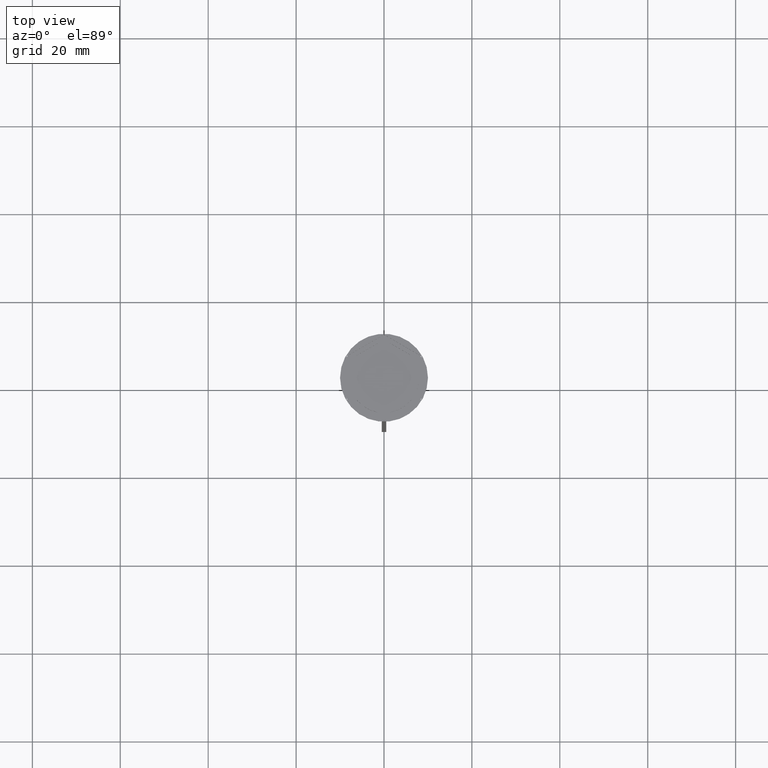
[diagram: clean part render]
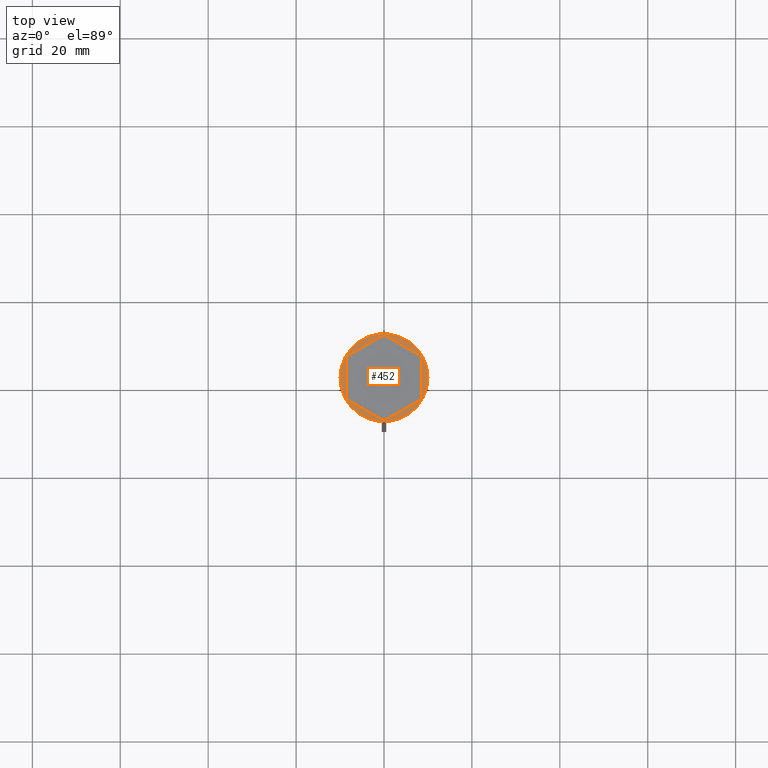
[diagram: same view with one face highlighted and labeled with its STEP entity id]
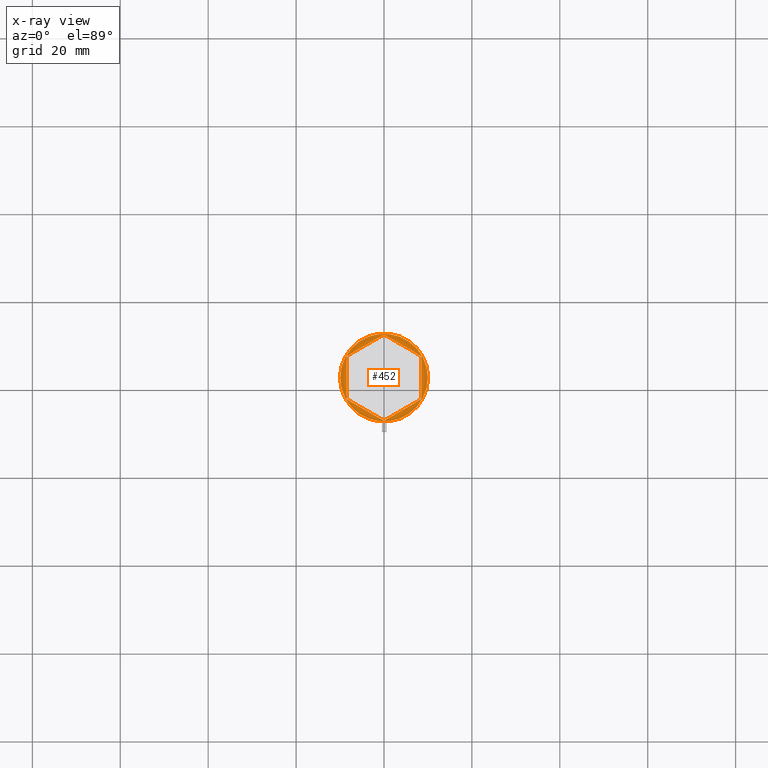
[diagram: x-ray of the same camera — body ghosted, the highlighted face saturated]
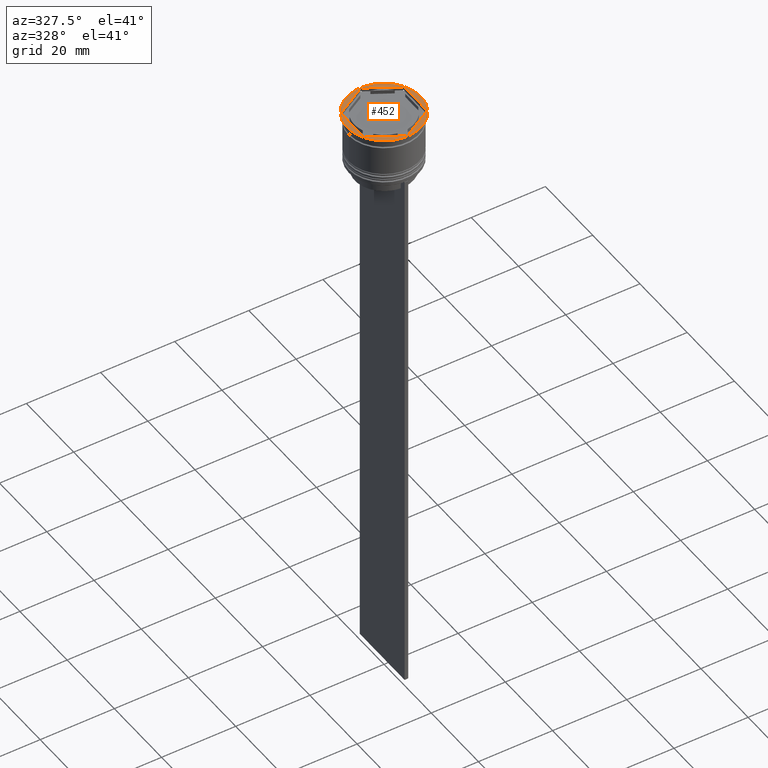
[diagram: same view with one face highlighted and labeled with its STEP entity id]
A machine part, top view. The second image highlights one B-rep face of the part: STEP entity #452.
The next image is the same camera in x-ray: the body ghosted, the highlighted face saturated — about 0% of this face is hidden behind the body in this view.
A second angle (auxiliary view) of the same face is appended — the face is thin or edge-on in the first view.
In plain terms, the highlighted planar face has unit normal (0, -0, 1).
Its self-contained STEP definition (entity closure, byte-faithful):
#31 = CARTESIAN_POINT ( 'NONE',  ( 0.000000000000000000, 0.000000000000000000, 0.000000000000000000 ) ) ;
#131 = DIRECTION ( 'NONE',  ( 1.000000000000000000, 0.000000000000000000, 0.000000000000000000 ) ) ;
#173 = VERTEX_POINT ( 'NONE', #1918 ) ;
#242 = EDGE_CURVE ( 'NONE', #744, #2194, #259, .T. ) ;
#259 = LINE ( 'NONE', #868, #748 ) ;
#270 = DIRECTION ( 'NONE',  ( 0.000000000000000000, 1.000000000000000000, 0.000000000000000000 ) ) ;
#293 = CARTESIAN_POINT ( 'NONE',  ( -8.500000000000000000, -4.907477288111819824, 0.000000000000000000 ) ) ;
#308 = PLANE ( 'NONE',  #1012 ) ;
#333 = DIRECTION ( 'NONE',  ( 0.000000000000000000, -1.000000000000000000, 0.000000000000000000 ) ) ;
#452 = ADVANCED_FACE ( 'NONE', ( #1371, #1380 ), #308, .T. ) ;
#516 = CARTESIAN_POINT ( 'NONE',  ( 8.500000000000000000, 4.907477288111819824, 0.000000000000000000 ) ) ;
#517 = VERTEX_POINT ( 'NONE', #1842 ) ;
#535 = AXIS2_PLACEMENT_3D ( 'NONE', #31, #2482, #2073 ) ;
#551 = ORIENTED_EDGE ( 'NONE', *, *, #1525, .F. ) ;
#652 = ORIENTED_EDGE ( 'NONE', *, *, #2011, .F. ) ;
#677 = EDGE_CURVE ( 'NONE', #173, #1299, #2300, .T. ) ;
#744 = VERTEX_POINT ( 'NONE', #2071 ) ;
#746 = LINE ( 'NONE', #1368, #1870 ) ;
#748 = VECTOR ( 'NONE', #270, 1000.000000000000000 ) ;
#868 = CARTESIAN_POINT ( 'NONE',  ( 8.500000000000000000, -4.907477288111818936, 0.000000000000000000 ) ) ;
#903 = LINE ( 'NONE', #293, #2472 ) ;
#993 = CARTESIAN_POINT ( 'NONE',  ( -8.500000000000000000, 4.907477288111818936, 0.000000000000000000 ) ) ;
#1012 = AXIS2_PLACEMENT_3D ( 'NONE', #1786, #1771, #131 ) ;
#1084 = LINE ( 'NONE', #1945, #1913 ) ;
#1101 = DIRECTION ( 'NONE',  ( -0.000000000000000000, -0.000000000000000000, 1.000000000000000000 ) ) ;
#1119 = DIRECTION ( 'NONE',  ( 0.8660254037844387076, -0.4999999999999997780, 0.000000000000000000 ) ) ;
#1167 = LINE ( 'NONE', #1791, #1950 ) ;
#1233 = EDGE_LOOP ( 'NONE', ( #2557, #1440 ) ) ;
#1270 = AXIS2_PLACEMENT_3D ( 'NONE', #1300, #1101, #1921 ) ;
#1299 = VERTEX_POINT ( 'NONE', #2622 ) ;
#1300 = CARTESIAN_POINT ( 'NONE',  ( 0.000000000000000000, 0.000000000000000000, 0.000000000000000000 ) ) ;
#1368 = CARTESIAN_POINT ( 'NONE',  ( -8.500000000000000000, 4.907477288111818936, 0.000000000000000000 ) ) ;
#1371 = FACE_BOUND ( 'NONE', #2578, .T. ) ;
#1380 = FACE_OUTER_BOUND ( 'NONE', #1233, .T. ) ;
#1427 = ORIENTED_EDGE ( 'NONE', *, *, #2438, .F. ) ;
#1440 = ORIENTED_EDGE ( 'NONE', *, *, #677, .T. ) ;
#1496 = VERTEX_POINT ( 'NONE', #1928 ) ;
#1525 = EDGE_CURVE ( 'NONE', #2503, #1496, #903, .T. ) ;
#1591 = EDGE_CURVE ( 'NONE', #2111, #2503, #746, .T. ) ;
#1771 = DIRECTION ( 'NONE',  ( 0.000000000000000000, -0.000000000000000000, 1.000000000000000000 ) ) ;
#1786 = CARTESIAN_POINT ( 'NONE',  ( 0.000000000000000000, 0.000000000000000000, 0.000000000000000000 ) ) ;
#1791 = CARTESIAN_POINT ( 'NONE',  ( 8.729740977282959667E-16, -9.814954576223637872, 0.000000000000000000 ) ) ;
#1804 = CARTESIAN_POINT ( 'NONE',  ( 0.000000000000000000, 9.814954576223636096, 0.000000000000000000 ) ) ;
#1842 = CARTESIAN_POINT ( 'NONE',  ( 0.000000000000000000, 9.814954576223636096, 0.000000000000000000 ) ) ;
#1870 = VECTOR ( 'NONE', #333, 1000.000000000000000 ) ;
#1913 = VECTOR ( 'NONE', #2553, 1000.000000000000000 ) ;
#1918 = CARTESIAN_POINT ( 'NONE',  ( -10.00000000000000000, 1.224646799147353256E-15, 0.000000000000000000 ) ) ;
#1921 = DIRECTION ( 'NONE',  ( 1.000000000000000000, 0.000000000000000000, 0.000000000000000000 ) ) ;
#1928 = CARTESIAN_POINT ( 'NONE',  ( 8.729740977282959667E-16, -9.814954576223637872, 0.000000000000000000 ) ) ;
#1945 = CARTESIAN_POINT ( 'NONE',  ( 8.500000000000000000, 4.907477288111819824, 0.000000000000000000 ) ) ;
#1950 = VECTOR ( 'NONE', #2613, 1000.000000000000227 ) ;
#1953 = EDGE_CURVE ( 'NONE', #517, #2111, #2596, .T. ) ;
#2011 = EDGE_CURVE ( 'NONE', #1496, #744, #1167, .T. ) ;
#2071 = CARTESIAN_POINT ( 'NONE',  ( 8.500000000000000000, -4.907477288111818936, 0.000000000000000000 ) ) ;
#2073 = DIRECTION ( 'NONE',  ( 1.000000000000000000, 0.000000000000000000, 0.000000000000000000 ) ) ;
#2111 = VERTEX_POINT ( 'NONE', #993 ) ;
#2137 = CARTESIAN_POINT ( 'NONE',  ( -8.500000000000000000, -4.907477288111819824, 0.000000000000000000 ) ) ;
#2179 = DIRECTION ( 'NONE',  ( -0.8660254037844387076, -0.4999999999999997780, 0.000000000000000000 ) ) ;
#2194 = VERTEX_POINT ( 'NONE', #516 ) ;
#2247 = ORIENTED_EDGE ( 'NONE', *, *, #242, .F. ) ;
#2271 = ORIENTED_EDGE ( 'NONE', *, *, #1591, .F. ) ;
#2300 = CIRCLE ( 'NONE', #535, 10.00000000000000000 ) ;
#2433 = CIRCLE ( 'NONE', #1270, 10.00000000000000000 ) ;
#2438 = EDGE_CURVE ( 'NONE', #2194, #517, #1084, .T. ) ;
#2472 = VECTOR ( 'NONE', #1119, 1000.000000000000114 ) ;
#2478 = VECTOR ( 'NONE', #2179, 1000.000000000000114 ) ;
#2482 = DIRECTION ( 'NONE',  ( -0.000000000000000000, -0.000000000000000000, 1.000000000000000000 ) ) ;
#2501 = EDGE_CURVE ( 'NONE', #1299, #173, #2433, .T. ) ;
#2503 = VERTEX_POINT ( 'NONE', #2137 ) ;
#2522 = ORIENTED_EDGE ( 'NONE', *, *, #1953, .F. ) ;
#2553 = DIRECTION ( 'NONE',  ( -0.8660254037844388186, 0.4999999999999997224, 0.000000000000000000 ) ) ;
#2557 = ORIENTED_EDGE ( 'NONE', *, *, #2501, .T. ) ;
#2578 = EDGE_LOOP ( 'NONE', ( #1427, #2247, #652, #551, #2271, #2522 ) ) ;
#2596 = LINE ( 'NONE', #1804, #2478 ) ;
#2613 = DIRECTION ( 'NONE',  ( 0.8660254037844385966, 0.5000000000000000000, 0.000000000000000000 ) ) ;
#2622 = CARTESIAN_POINT ( 'NONE',  ( 10.00000000000000000, 0.000000000000000000, 0.000000000000000000 ) ) ;